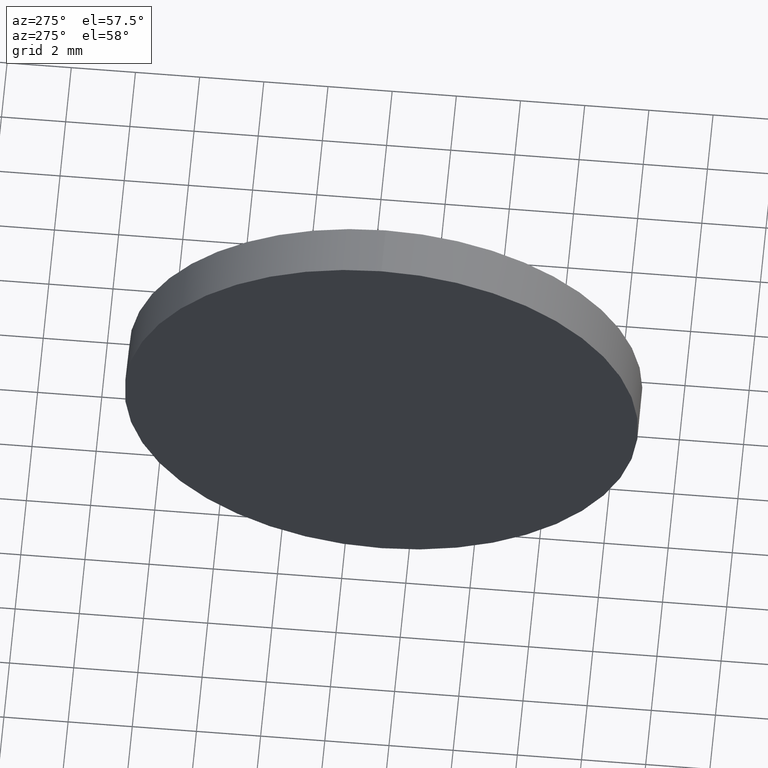
[diagram: clean part render]
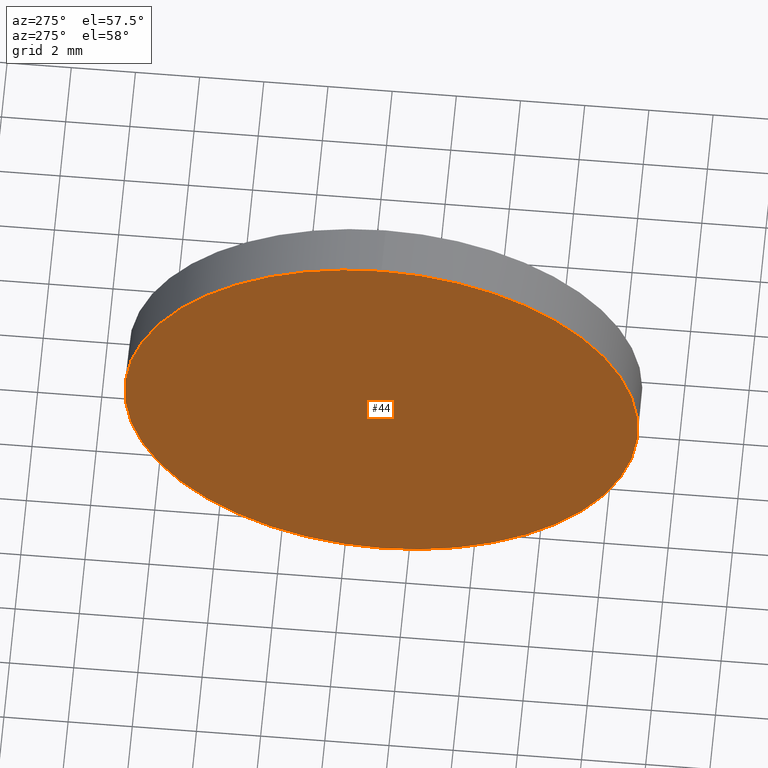
[diagram: same view with one face highlighted and labeled with its STEP entity id]
A machine part, auxiliary view. The second image highlights one B-rep face of the part: STEP entity #44.
In plain terms, the highlighted planar face has unit normal (1, 0, 0).
Its self-contained STEP definition (entity closure, byte-faithful):
#4 = CARTESIAN_POINT ( 'NONE',  ( 679.0008542720967200, 360.8508104614297200, -7.999999999999952000 ) ) ;
#10 = AXIS2_PLACEMENT_3D ( 'NONE', #175, #124, #38 ) ;
#11 = CARTESIAN_POINT ( 'NONE',  ( 679.0008542720967200, 360.8508104614297200, 7.999999999999952000 ) ) ;
#19 = AXIS2_PLACEMENT_3D ( 'NONE', #87, #141, #70 ) ;
#24 = FACE_OUTER_BOUND ( 'NONE', #55, .T. ) ;
#38 = DIRECTION ( 'NONE',  ( 0.0000000000000000000, 0.0000000000000000000, -1.000000000000000000 ) ) ;
#42 = DIRECTION ( 'NONE',  ( -1.000000000000000000, -0.0000000000000000000, -0.0000000000000000000 ) ) ;
#44 = ADVANCED_FACE ( 'NONE', ( #24 ), #122, .F. ) ;
#48 = AXIS2_PLACEMENT_3D ( 'NONE', #180, #42, #96 ) ;
#53 = EDGE_CURVE ( 'NONE', #123, #136, #72, .T. ) ;
#55 = EDGE_LOOP ( 'NONE', ( #129, #178 ) ) ;
#70 = DIRECTION ( 'NONE',  ( 0.0000000000000000000, 0.0000000000000000000, 1.000000000000000000 ) ) ;
#72 = CIRCLE ( 'NONE', #19, 7.999999999999952000 ) ;
#87 = CARTESIAN_POINT ( 'NONE',  ( 679.0008542720967200, 360.8508104614297200, 0.0000000000000000000 ) ) ;
#96 = DIRECTION ( 'NONE',  ( 0.0000000000000000000, 0.0000000000000000000, 1.000000000000000000 ) ) ;
#122 = PLANE ( 'NONE',  #10 ) ;
#123 = VERTEX_POINT ( 'NONE', #4 ) ;
#124 = DIRECTION ( 'NONE',  ( 1.000000000000000000, 0.0000000000000000000, 0.0000000000000000000 ) ) ;
#129 = ORIENTED_EDGE ( 'NONE', *, *, #159, .T. ) ;
#136 = VERTEX_POINT ( 'NONE', #11 ) ;
#141 = DIRECTION ( 'NONE',  ( -1.000000000000000000, -0.0000000000000000000, -0.0000000000000000000 ) ) ;
#143 = CIRCLE ( 'NONE', #48, 7.999999999999952000 ) ;
#159 = EDGE_CURVE ( 'NONE', #136, #123, #143, .T. ) ;
#175 = CARTESIAN_POINT ( 'NONE',  ( 679.0008542720967200, 360.8508104614297200, 0.0000000000000000000 ) ) ;
#178 = ORIENTED_EDGE ( 'NONE', *, *, #53, .T. ) ;
#180 = CARTESIAN_POINT ( 'NONE',  ( 679.0008542720967200, 360.8508104614297200, 0.0000000000000000000 ) ) ;